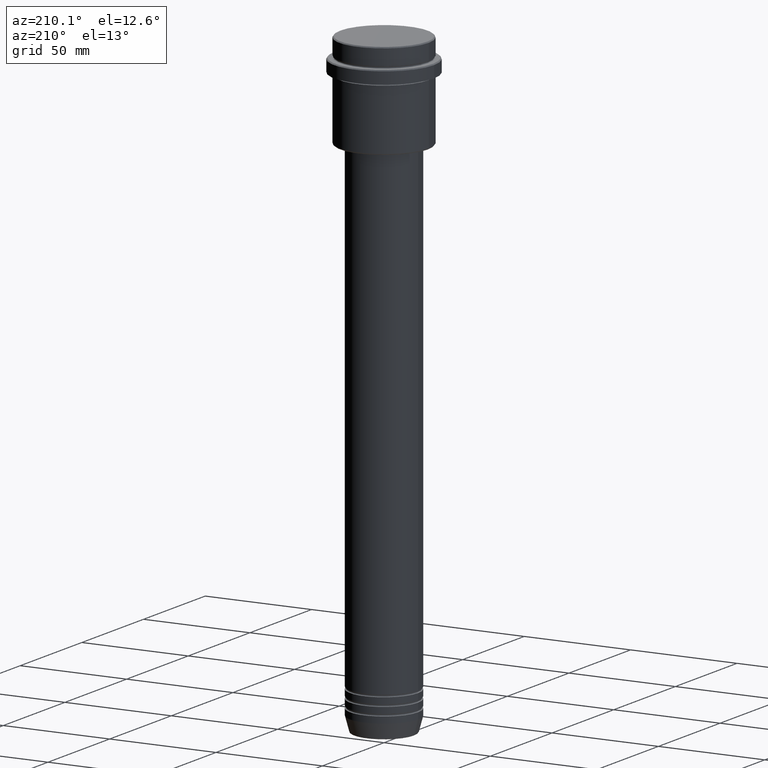
[diagram: clean part render]
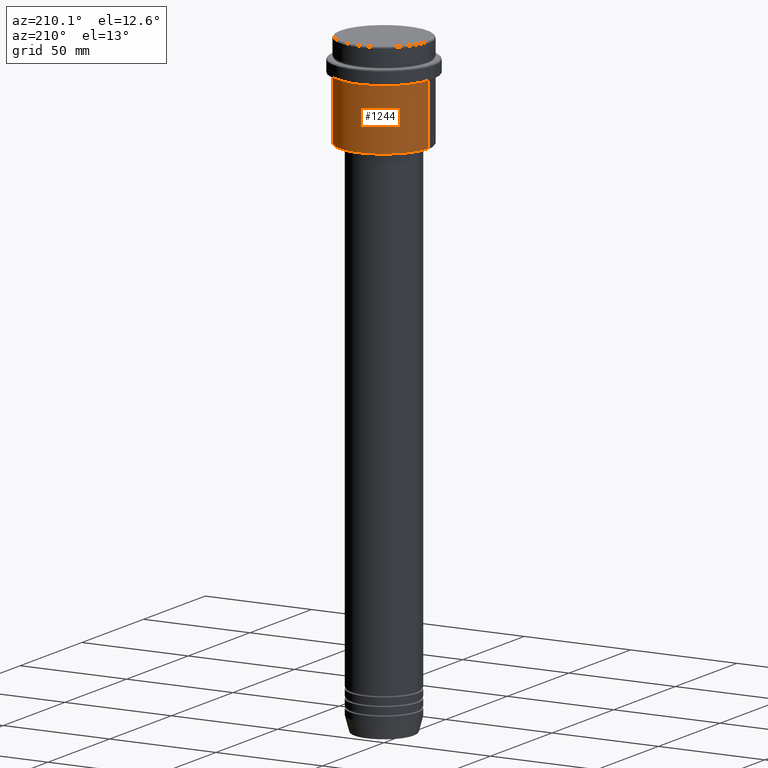
[diagram: same view with one face highlighted and labeled with its STEP entity id]
A machine part, auxiliary view. The second image highlights one B-rep face of the part: STEP entity #1244.
In plain terms, the highlighted cylindrical surface (partial cylindrical patch) has radius 21 mm, axis along (-0, -0, 1).
Its self-contained STEP definition (entity closure, byte-faithful):
#2 = DIRECTION ( 'NONE',  ( -0.000000000000000000, -0.000000000000000000, 1.000000000000000000 ) ) ;
#91 = CARTESIAN_POINT ( 'NONE',  ( 0.000000000000000000, 0.000000000000000000, -16.00000000000000355 ) ) ;
#117 = EDGE_CURVE ( 'NONE', #931, #1112, #400, .T. ) ;
#144 = CIRCLE ( 'NONE', #1038, 21.00000000000000000 ) ;
#156 = DIRECTION ( 'NONE',  ( -1.000000000000000000, 0.000000000000000000, 0.000000000000000000 ) ) ;
#179 = CARTESIAN_POINT ( 'NONE',  ( -21.00000000000000000, 2.571758278209441661E-15, 0.000000000000000000 ) ) ;
#197 = EDGE_CURVE ( 'NONE', #1308, #953, #1208, .T. ) ;
#253 = ORIENTED_EDGE ( 'NONE', *, *, #197, .F. ) ;
#291 = CARTESIAN_POINT ( 'NONE',  ( 0.000000000000000000, 0.000000000000000000, -44.49999999999991473 ) ) ;
#367 = ORIENTED_EDGE ( 'NONE', *, *, #945, .F. ) ;
#400 = LINE ( 'NONE', #179, #487 ) ;
#429 = DIRECTION ( 'NONE',  ( 1.000000000000000000, 0.000000000000000000, 0.000000000000000000 ) ) ;
#454 = CARTESIAN_POINT ( 'NONE',  ( -21.00000000000000000, 2.571758278209441661E-15, -16.00000000000000355 ) ) ;
#464 = VECTOR ( 'NONE', #2, 1000.000000000000000 ) ;
#487 = VECTOR ( 'NONE', #744, 1000.000000000000000 ) ;
#562 = CIRCLE ( 'NONE', #852, 21.00000000000000000 ) ;
#564 = ORIENTED_EDGE ( 'NONE', *, *, #763, .T. ) ;
#651 = EDGE_LOOP ( 'NONE', ( #564, #1327, #367, #253 ) ) ;
#744 = DIRECTION ( 'NONE',  ( -0.000000000000000000, -0.000000000000000000, 1.000000000000000000 ) ) ;
#750 = CARTESIAN_POINT ( 'NONE',  ( 21.00000000000000000, 0.000000000000000000, -44.49999999999991473 ) ) ;
#763 = EDGE_CURVE ( 'NONE', #1308, #931, #144, .T. ) ;
#852 = AXIS2_PLACEMENT_3D ( 'NONE', #91, #869, #1081 ) ;
#857 = CYLINDRICAL_SURFACE ( 'NONE', #1364, 21.00000000000000000 ) ;
#869 = DIRECTION ( 'NONE',  ( -0.000000000000000000, -0.000000000000000000, 1.000000000000000000 ) ) ;
#931 = VERTEX_POINT ( 'NONE', #1415 ) ;
#945 = EDGE_CURVE ( 'NONE', #953, #1112, #562, .T. ) ;
#953 = VERTEX_POINT ( 'NONE', #971 ) ;
#955 = CARTESIAN_POINT ( 'NONE',  ( 0.000000000000000000, 0.000000000000000000, 0.000000000000000000 ) ) ;
#971 = CARTESIAN_POINT ( 'NONE',  ( 21.00000000000000000, 0.000000000000000000, -16.00000000000000355 ) ) ;
#1038 = AXIS2_PLACEMENT_3D ( 'NONE', #291, #1132, #156 ) ;
#1081 = DIRECTION ( 'NONE',  ( 1.000000000000000000, 0.000000000000000000, 0.000000000000000000 ) ) ;
#1112 = VERTEX_POINT ( 'NONE', #454 ) ;
#1132 = DIRECTION ( 'NONE',  ( -0.000000000000000000, -0.000000000000000000, 1.000000000000000000 ) ) ;
#1208 = LINE ( 'NONE', #1348, #464 ) ;
#1244 = ADVANCED_FACE ( 'NONE', ( #1388 ), #857, .T. ) ;
#1308 = VERTEX_POINT ( 'NONE', #750 ) ;
#1327 = ORIENTED_EDGE ( 'NONE', *, *, #117, .T. ) ;
#1348 = CARTESIAN_POINT ( 'NONE',  ( 21.00000000000000000, 0.000000000000000000, 0.000000000000000000 ) ) ;
#1364 = AXIS2_PLACEMENT_3D ( 'NONE', #955, #1411, #429 ) ;
#1388 = FACE_OUTER_BOUND ( 'NONE', #651, .T. ) ;
#1411 = DIRECTION ( 'NONE',  ( -0.000000000000000000, -0.000000000000000000, 1.000000000000000000 ) ) ;
#1415 = CARTESIAN_POINT ( 'NONE',  ( -21.00000000000000000, 2.571758278209441661E-15, -44.49999999999991473 ) ) ;